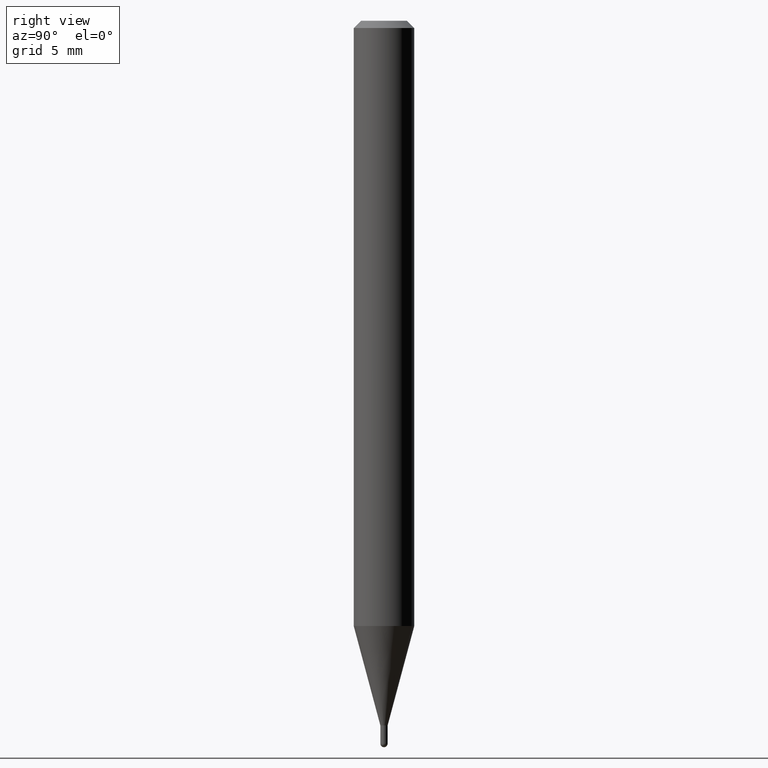
[diagram: clean part render]
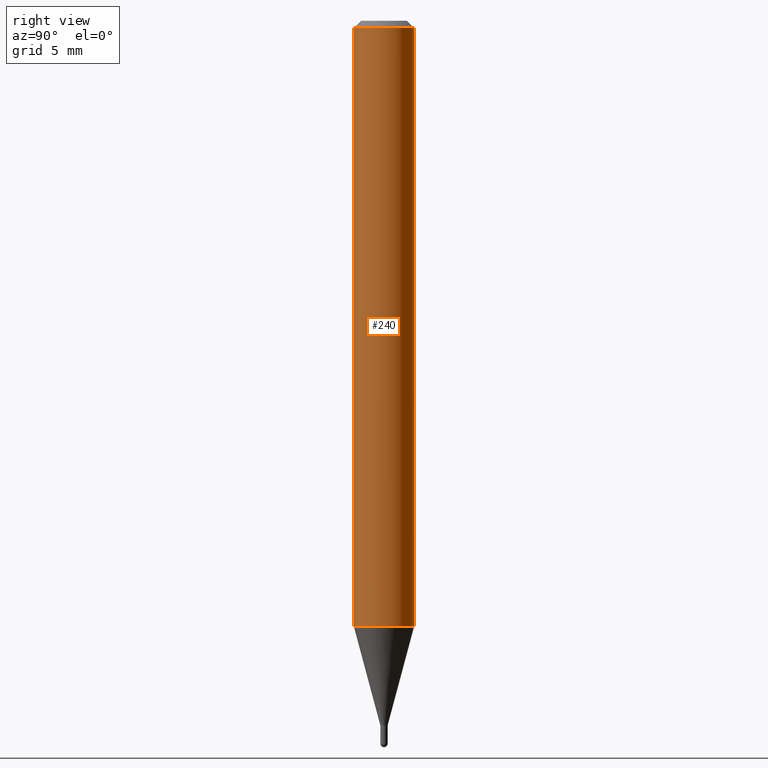
[diagram: same view with one face highlighted and labeled with its STEP entity id]
A machine part, right view. The second image highlights one B-rep face of the part: STEP entity #240.
In plain terms, the highlighted cylindrical surface (edge-blend (fillet) strip) has radius 1.5875 mm, axis along (-0, 0, 1).
Its self-contained STEP definition (entity closure, byte-faithful):
#10 = LINE ( 'NONE', #262, #340 ) ;
#29 = ORIENTED_EDGE ( 'NONE', *, *, #143, .T. ) ;
#33 = VERTEX_POINT ( 'NONE', #217 ) ;
#57 = ORIENTED_EDGE ( 'NONE', *, *, #381, .F. ) ;
#69 = EDGE_LOOP ( 'NONE', ( #29, #471, #375, #57 ) ) ;
#79 = CIRCLE ( 'NONE', #466, 0.06250000000000000000 ) ;
#80 = AXIS2_PLACEMENT_3D ( 'NONE', #398, #123, #153 ) ;
#120 = FACE_OUTER_BOUND ( 'NONE', #69, .T. ) ;
#123 = DIRECTION ( 'NONE',  ( -2.445455298857690546E-29, 3.491500682104837791E-15, 1.000000000000000000 ) ) ;
#127 = EDGE_CURVE ( 'NONE', #33, #158, #10, .T. ) ;
#143 = EDGE_CURVE ( 'NONE', #319, #33, #79, .T. ) ;
#153 = DIRECTION ( 'NONE',  ( -6.982962677686265922E-15, -1.000000000000000000, 3.483106191921935554E-15 ) ) ;
#158 = VERTEX_POINT ( 'NONE', #463 ) ;
#164 = DIRECTION ( 'NONE',  ( -2.445455298857690546E-29, 3.491500682104837791E-15, 1.000000000000000000 ) ) ;
#193 = LINE ( 'NONE', #344, #501 ) ;
#199 = CYLINDRICAL_SURFACE ( 'NONE', #327, 0.06250000000000000000 ) ;
#200 = CARTESIAN_POINT ( 'NONE',  ( 3.056176471574309207E-29, -4.363458305747349090E-15, -1.249737205583719257 ) ) ;
#217 = CARTESIAN_POINT ( 'NONE',  ( 4.440892098500929873E-16, 0.06249999999999562850, -1.249737205583719479 ) ) ;
#226 = DIRECTION ( 'NONE',  ( -6.982962677686265922E-15, -1.000000000000000000, 3.491500682104837791E-15 ) ) ;
#230 = CARTESIAN_POINT ( 'NONE',  ( -4.364351673553611504E-16, -0.06250000000000435763, -1.249737205583719035 ) ) ;
#240 = ADVANCED_FACE ( 'NONE', ( #120 ), #199, .T. ) ;
#262 = CARTESIAN_POINT ( 'NONE',  ( 4.440892098500625669E-16, 0.06250000000000000000, -2.182187926315523620E-16 ) ) ;
#270 = VERTEX_POINT ( 'NONE', #271 ) ;
#271 = CARTESIAN_POINT ( 'NONE',  ( -4.364351673553912750E-16, -0.06250000000000005551, -0.01499999999999979128 ) ) ;
#278 = DIRECTION ( 'NONE',  ( -6.982962677686265922E-15, -1.000000000000000000, 4.370956789862821150E-15 ) ) ;
#313 = DIRECTION ( 'NONE',  ( -2.445455298857690826E-29, 3.491500682104837791E-15, 1.000000000000000000 ) ) ;
#319 = VERTEX_POINT ( 'NONE', #230 ) ;
#327 = AXIS2_PLACEMENT_3D ( 'NONE', #435, #484, #226 ) ;
#340 = VECTOR ( 'NONE', #399, 39.37007874015748143 ) ;
#344 = CARTESIAN_POINT ( 'NONE',  ( -4.364351673553916201E-16, -0.06250000000000000000, 2.182187926315523620E-16 ) ) ;
#355 = EDGE_CURVE ( 'NONE', #270, #158, #417, .T. ) ;
#375 = ORIENTED_EDGE ( 'NONE', *, *, #355, .F. ) ;
#381 = EDGE_CURVE ( 'NONE', #319, #270, #193, .T. ) ;
#398 = CARTESIAN_POINT ( 'NONE',  ( 3.668182948286538113E-31, -5.237251023157260138E-17, -0.01500000000000000812 ) ) ;
#399 = DIRECTION ( 'NONE',  ( -2.445455298857690826E-29, 3.491500682104837791E-15, 1.000000000000000000 ) ) ;
#417 = CIRCLE ( 'NONE', #80, 0.06250000000000000000 ) ;
#435 = CARTESIAN_POINT ( 'NONE',  ( 0.000000000000000000, 0.000000000000000000, 0.000000000000000000 ) ) ;
#463 = CARTESIAN_POINT ( 'NONE',  ( 4.440892098500932831E-16, 0.06249999999999995143, -0.01500000000000022669 ) ) ;
#466 = AXIS2_PLACEMENT_3D ( 'NONE', #200, #164, #278 ) ;
#471 = ORIENTED_EDGE ( 'NONE', *, *, #127, .T. ) ;
#484 = DIRECTION ( 'NONE',  ( -2.445455298857690546E-29, 3.491500682104837791E-15, 1.000000000000000000 ) ) ;
#501 = VECTOR ( 'NONE', #313, 39.37007874015748143 ) ;